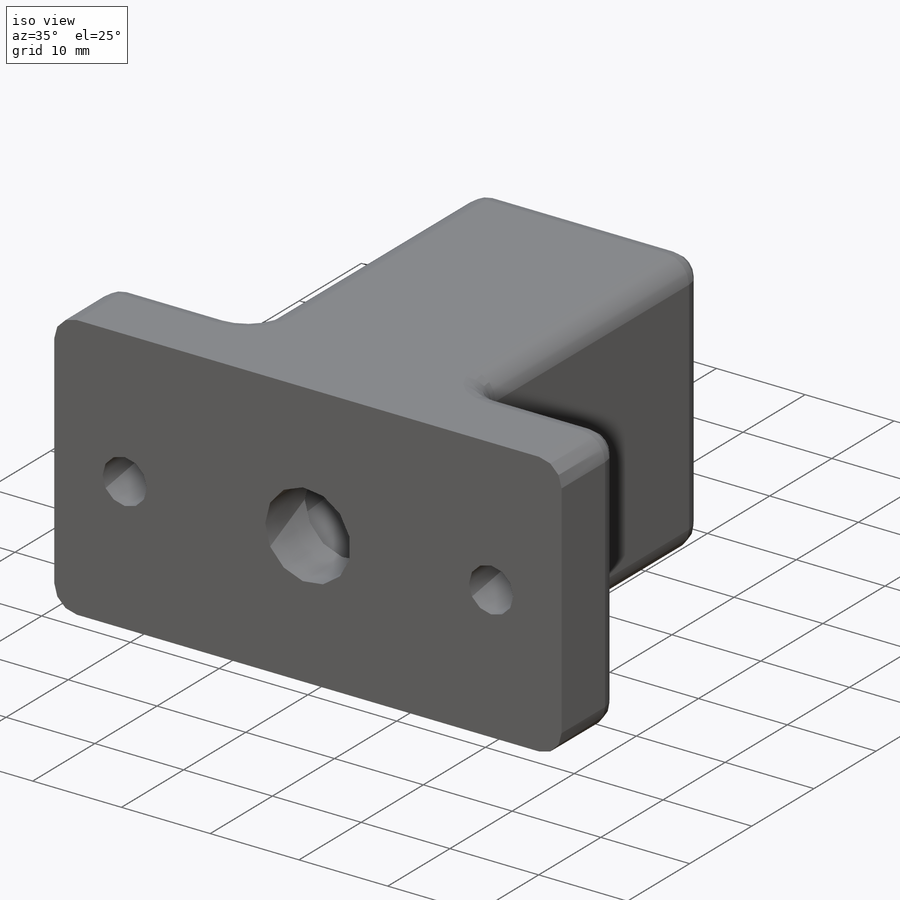
[diagram: iso view]
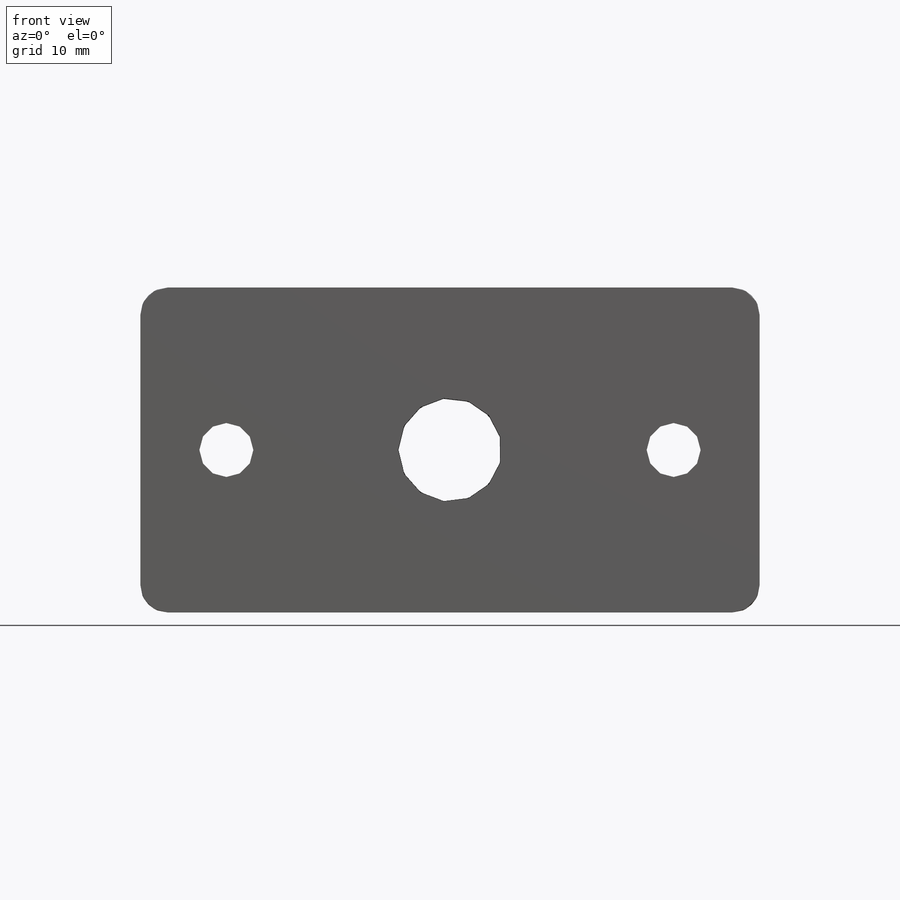
[diagram: front view]
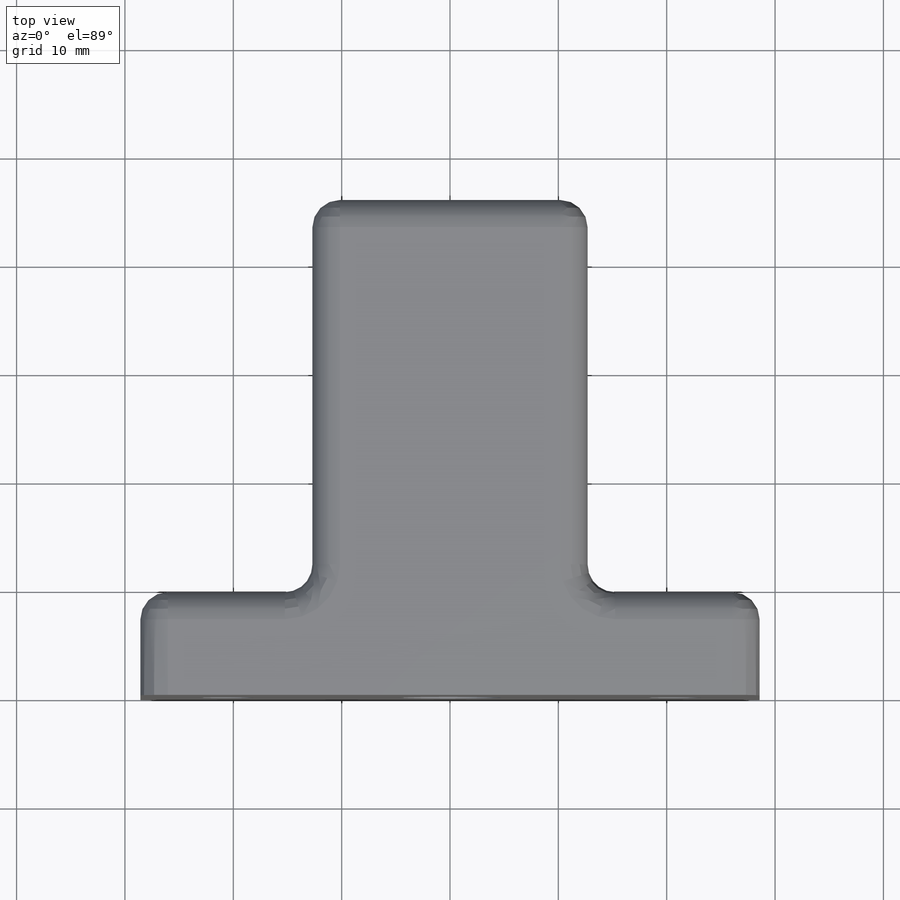
[diagram: top view]
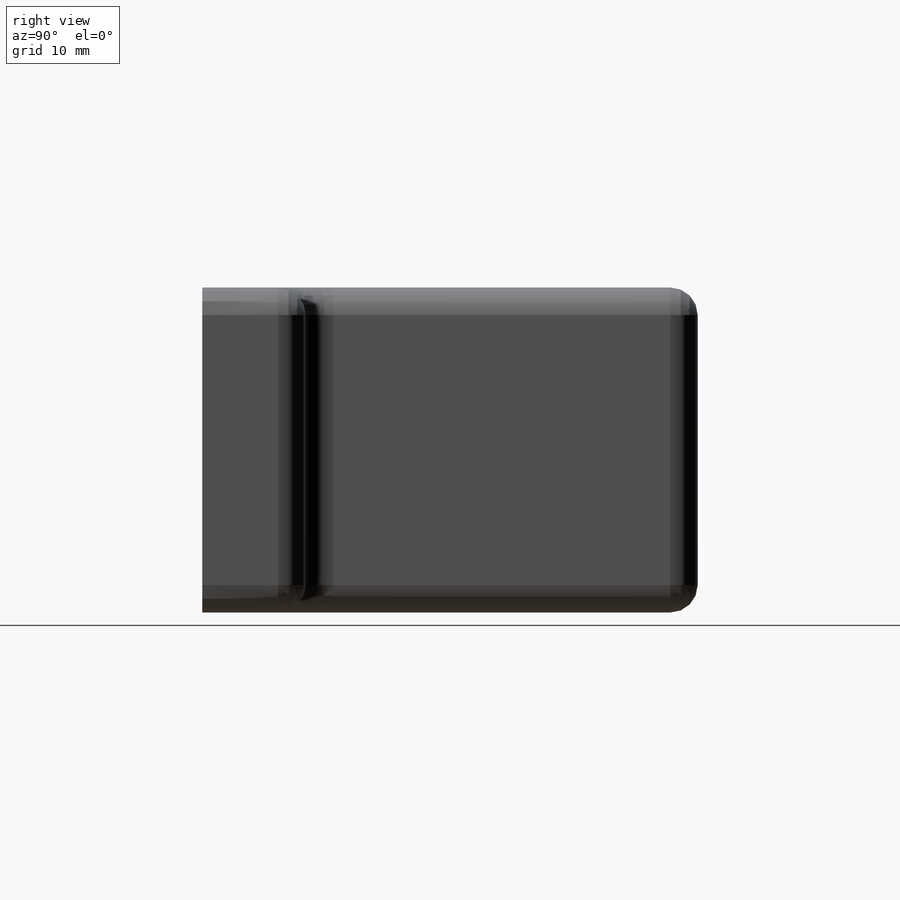
[diagram: right view]
SOLIDWORKS PART (.sldprt)
format: sldprt  version: not decoded by parser v0  size: 263,680 bytes
history: native  units: mm
features: sketch x5, extrude x2, material x1, revolve x1, hole x1, fillet x1 (+11 scaffold rows collapsed)
feature tree (22):
  scaffold x11  (default folders/planes/origin — collapsed)
  material  "Material <not specified>"
  sketch  "Sketch1"  dims[c1.D1=9.6125mm c1.D2=6.35mm c1.D3=~13.58125mm c1.D4=23.1775mm c1.D5=3.81mm c1.D6=9.525mm c1.D7=25.4mm c2.D4=41.91mm]
  revolve  "Revolve1"  Angle=360deg
  sketch  "Sketch3"  dims[D1=57.15mm D2=30.0mm]
  extrude  "Boss-Extrude1"  Depth=9.525mm
  sketch  "Sketch6"  dims[D1=1.016mm]
  extrude  "Boss-Extrude2"  [1 undecoded]
  hole  "#10 Clearance Hole1"  Diameter=4.9784mm Depth=9.525mm
  sketch  "Sketch5"
  sketch  "Sketch4"  dims[hole-wizard template sketch: 60 standard entries collapsed; hole parameters kept: c18.Thru Hole Depth=9.525mm]
  fillet  "Fillet2"  Radius=2.54mm
decode coverage: 8 of 10 modeling features carry decoded parameters
note: ~ marks probable driven/reference dimensions
note: 1 parameter value undecoded
note: suppression state not decoded; provenance and decode notes live in map.json
